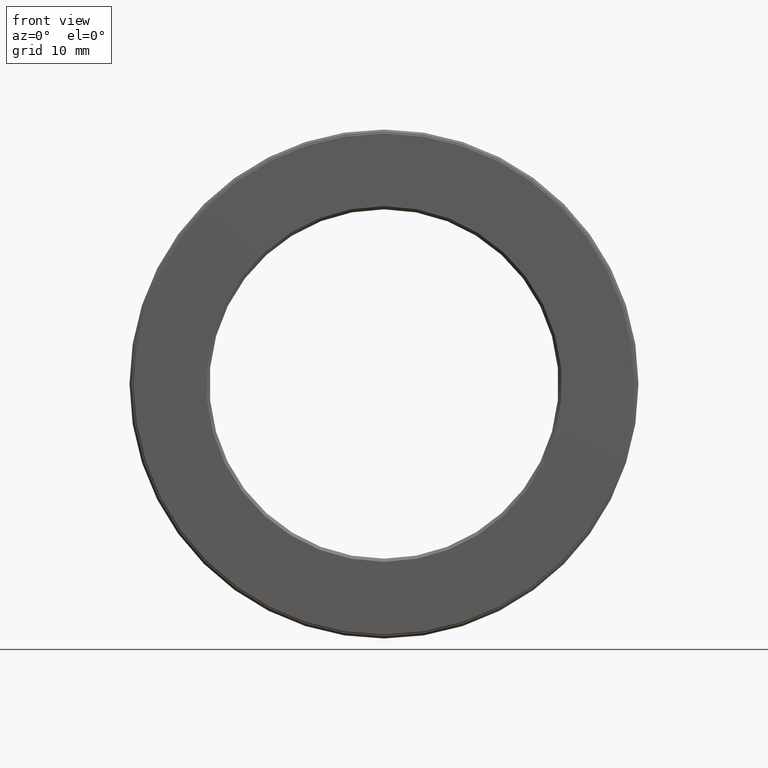
[diagram: clean part render]
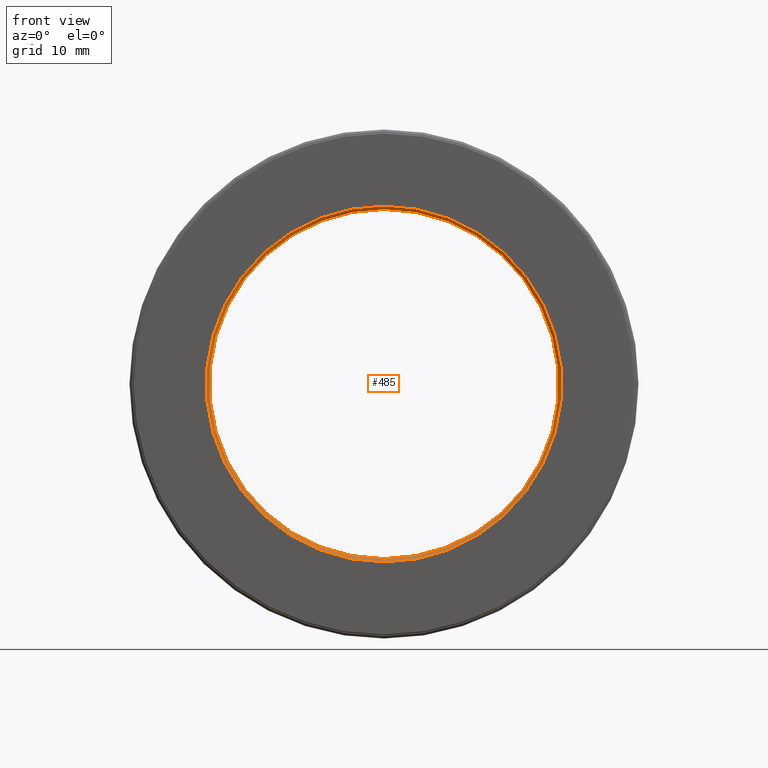
[diagram: same view with one face highlighted and labeled with its STEP entity id]
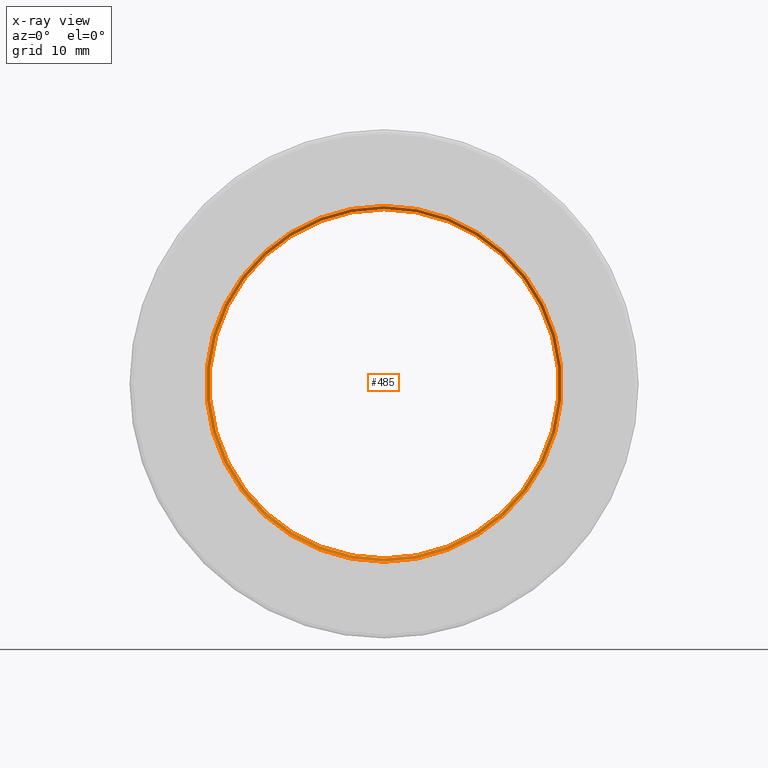
[diagram: x-ray of the same camera — body ghosted, the highlighted face saturated]
A machine part, front view. The second image highlights one B-rep face of the part: STEP entity #485.
The next image is the same camera in x-ray: the body ghosted, the highlighted face saturated — about 0% of this face is hidden behind the body in this view.
In plain terms, the highlighted conical surface has half-angle 45 deg.
Its self-contained STEP definition (entity closure, byte-faithful):
#12 = AXIS2_PLACEMENT_3D ( 'NONE', #358, #177, #501 ) ;
#29 = FACE_OUTER_BOUND ( 'NONE', #481, .T. ) ;
#31 = CARTESIAN_POINT ( 'NONE',  ( 0.0000000000000000000, 0.02000000000000046900, 1.093750000000000000 ) ) ;
#54 = EDGE_CURVE ( 'NONE', #318, #318, #368, .T. ) ;
#59 = DIRECTION ( 'NONE',  ( 0.0000000000000000000, -1.000000000000000000, 0.0000000000000000000 ) ) ;
#107 = CONICAL_SURFACE ( 'NONE', #233, 1.093750000000000000, 0.7853981633974449500 ) ;
#177 = DIRECTION ( 'NONE',  ( -0.0000000000000000000, 1.000000000000000000, -0.0000000000000000000 ) ) ;
#182 = CIRCLE ( 'NONE', #12, 1.113750000000000500 ) ;
#233 = AXIS2_PLACEMENT_3D ( 'NONE', #347, #59, #391 ) ;
#281 = DIRECTION ( 'NONE',  ( -0.0000000000000000000, 1.000000000000000000, -0.0000000000000000000 ) ) ;
#284 = CARTESIAN_POINT ( 'NONE',  ( 0.0000000000000000000, 0.0000000000000000000, 1.113750000000000500 ) ) ;
#318 = VERTEX_POINT ( 'NONE', #31 ) ;
#347 = CARTESIAN_POINT ( 'NONE',  ( 0.0000000000000000000, 0.02000000000000046900, 0.0000000000000000000 ) ) ;
#358 = CARTESIAN_POINT ( 'NONE',  ( 0.0000000000000000000, 0.0000000000000000000, 0.0000000000000000000 ) ) ;
#368 = CIRCLE ( 'NONE', #371, 1.093750000000000000 ) ;
#371 = AXIS2_PLACEMENT_3D ( 'NONE', #378, #281, #424 ) ;
#378 = CARTESIAN_POINT ( 'NONE',  ( 0.0000000000000000000, 0.02000000000000046900, 0.0000000000000000000 ) ) ;
#391 = DIRECTION ( 'NONE',  ( 0.0000000000000000000, 0.0000000000000000000, -1.000000000000000000 ) ) ;
#424 = DIRECTION ( 'NONE',  ( 0.0000000000000000000, 0.0000000000000000000, 1.000000000000000000 ) ) ;
#442 = EDGE_LOOP ( 'NONE', ( #454 ) ) ;
#454 = ORIENTED_EDGE ( 'NONE', *, *, #54, .T. ) ;
#459 = VERTEX_POINT ( 'NONE', #284 ) ;
#461 = ORIENTED_EDGE ( 'NONE', *, *, #524, .F. ) ;
#481 = EDGE_LOOP ( 'NONE', ( #461 ) ) ;
#485 = ADVANCED_FACE ( 'NONE', ( #29, #489 ), #107, .F. ) ;
#489 = FACE_BOUND ( 'NONE', #442, .T. ) ;
#501 = DIRECTION ( 'NONE',  ( 0.0000000000000000000, 0.0000000000000000000, 1.000000000000000000 ) ) ;
#524 = EDGE_CURVE ( 'NONE', #459, #459, #182, .T. ) ;